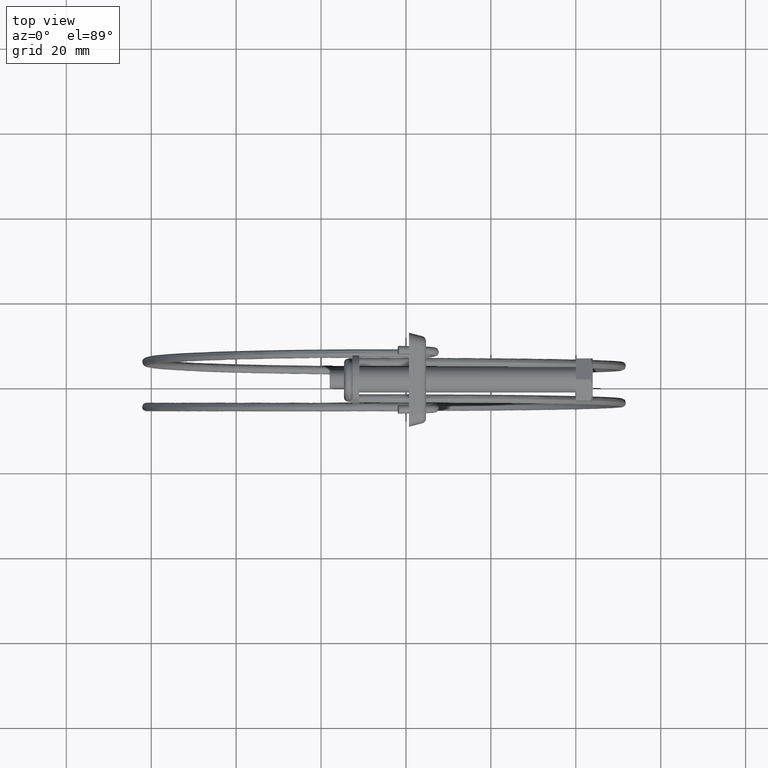
[diagram: clean part render]
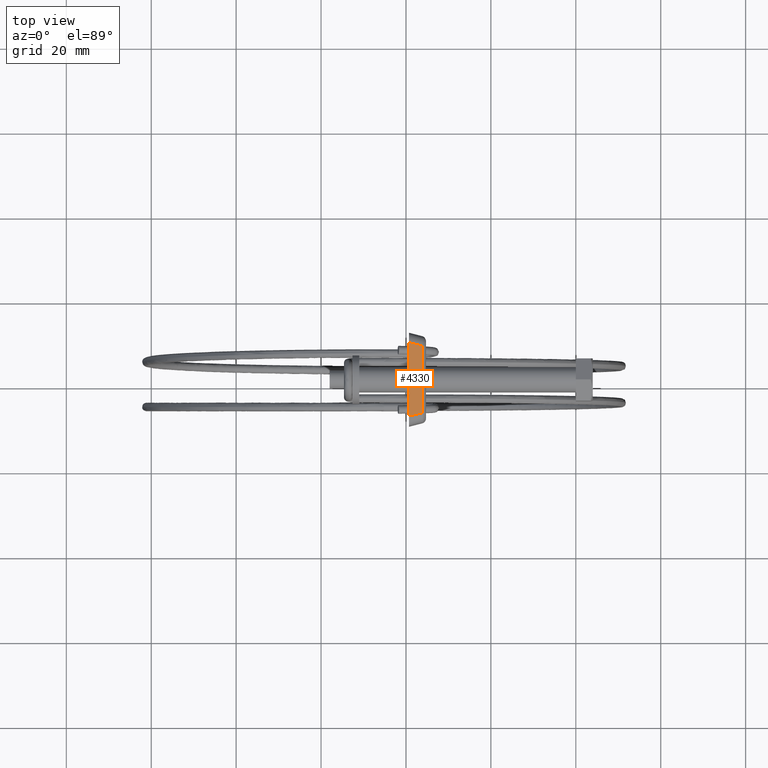
[diagram: same view with one face highlighted and labeled with its STEP entity id]
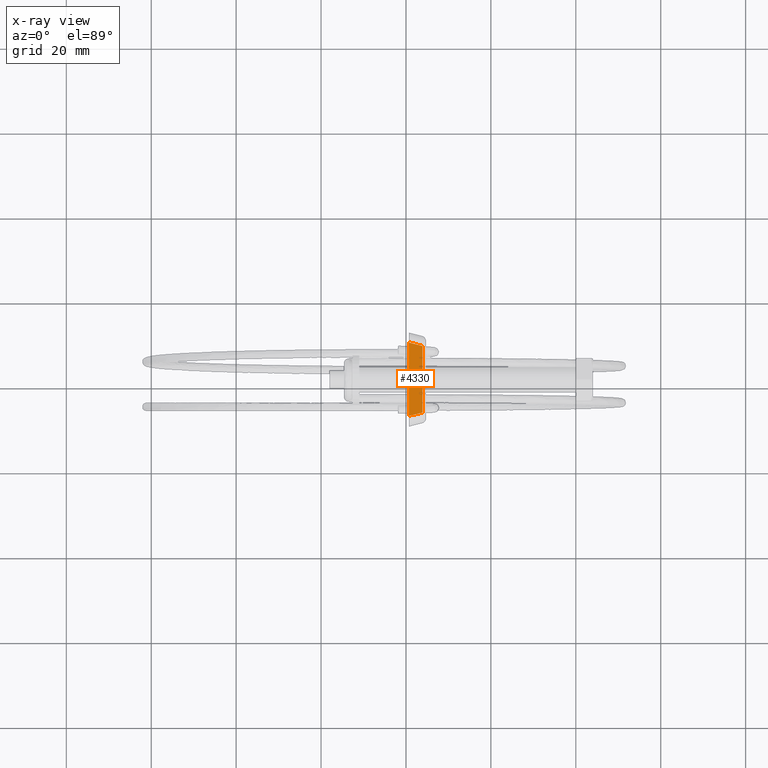
[diagram: x-ray of the same camera — body ghosted, the highlighted face saturated]
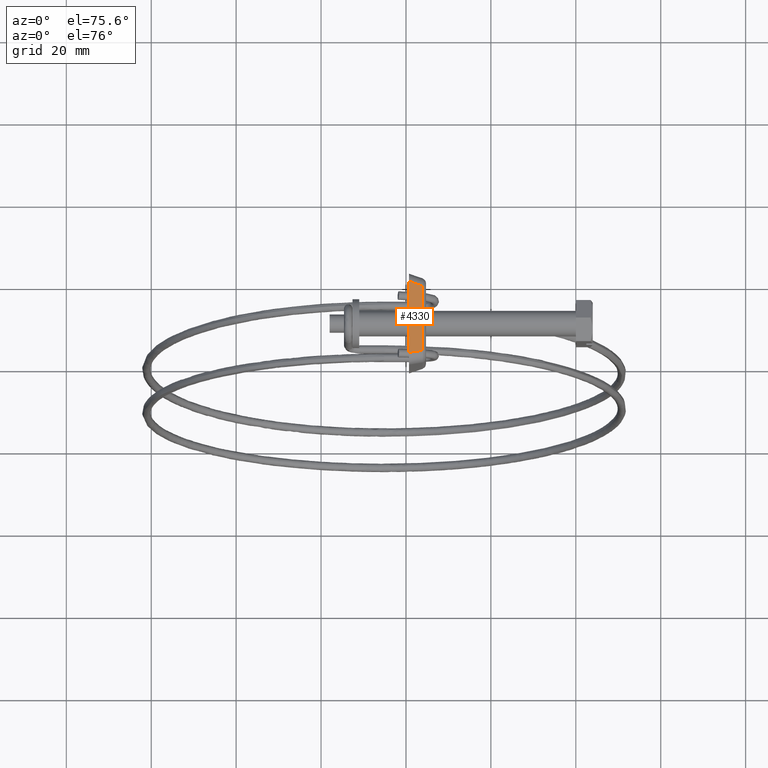
[diagram: same view with one face highlighted and labeled with its STEP entity id]
A machine part, top view. The second image highlights one B-rep face of the part: STEP entity #4330.
The next image is the same camera in x-ray: the body ghosted, the highlighted face saturated — about 0% of this face is hidden behind the body in this view.
A second angle (auxiliary view) of the same face is appended — the face is thin or edge-on in the first view.
In plain terms, the highlighted face is a freeform B-spline surface patch.
Its self-contained STEP definition (entity closure, byte-faithful):
#3442=CARTESIAN_POINT('',(-35.478652022991000,7.837173833659399,5.291994008621761));
#3443=VERTEX_POINT('',#3442);
#3588=CARTESIAN_POINT('',(-35.478652022990950,-7.837173833659441,5.291994008621720));
#3589=VERTEX_POINT('',#3588);
#3611=CARTESIAN_POINT('',(-35.478652022990950,-7.837173833659441,5.291994008621720));
#3612=CARTESIAN_POINT('',(-35.478652022991000,7.837173833659399,5.291994008621761));
#3613=QUASI_UNIFORM_CURVE('',1,(#3611,#3612),.UNSPECIFIED.,.F.,.U.);
#3614=EDGE_CURVE('',#3589,#3443,#3613,.T.);
#3955=CARTESIAN_POINT('',(-38.700000000000003,-8.642511158470031,6.500000000000110));
#3956=VERTEX_POINT('',#3955);
#3957=CARTESIAN_POINT('',(-38.700000000000003,-8.642511158470031,6.500000000000110));
#3958=CARTESIAN_POINT('',(-35.478652022990950,-7.837173833659441,5.291994008621720));
#3959=QUASI_UNIFORM_CURVE('',1,(#3957,#3958),.UNSPECIFIED.,.F.,.U.);
#3960=EDGE_CURVE('',#3956,#3589,#3959,.T.);
#4082=CARTESIAN_POINT('',(-38.700000000000003,8.642511158470031,6.500000000000110));
#4083=VERTEX_POINT('',#4082);
#4084=CARTESIAN_POINT('',(-35.478652022991000,7.837173833659399,5.291994008621761));
#4085=CARTESIAN_POINT('',(-38.700000000000003,8.642511158470031,6.500000000000110));
#4086=QUASI_UNIFORM_CURVE('',1,(#4084,#4085),.UNSPECIFIED.,.F.,.U.);
#4087=EDGE_CURVE('',#3443,#4083,#4086,.T.);
#4244=CARTESIAN_POINT('',(-38.700000000000003,-8.642511158470031,6.500000000000110));
#4245=CARTESIAN_POINT('',(-38.700000000000003,8.642511158470031,6.500000000000110));
#4246=QUASI_UNIFORM_CURVE('',1,(#4244,#4245),.UNSPECIFIED.,.F.,.U.);
#4247=EDGE_CURVE('',#3956,#4083,#4246,.T.);
#4319=CARTESIAN_POINT('',(-38.860907350114417,-9.505898314218301,6.560339231317746));
#4320=CARTESIAN_POINT('',(-35.317746528101807,-9.505898314218301,5.231654473013151));
#4321=CARTESIAN_POINT('',(-38.860907350114417,9.505898468758446,6.560339231317746));
#4322=CARTESIAN_POINT('',(-35.317746528101807,9.505898468758446,5.231654473013151));
#4323=B_SPLINE_SURFACE_WITH_KNOTS('',1,1,((#4319,#4321),(#4320,#4322)),.UNSPECIFIED.,.F.,.F.,.U.,(2,2),(2,2),(0.0,3.784097223591911),(0.0,19.011796782976749),.UNSPECIFIED.);
#4324=ORIENTED_EDGE('',*,*,#3960,.T.);
#4325=ORIENTED_EDGE('',*,*,#3614,.T.);
#4326=ORIENTED_EDGE('',*,*,#4087,.T.);
#4327=ORIENTED_EDGE('',*,*,#4247,.F.);
#4328=EDGE_LOOP('',(#4324,#4325,#4326,#4327));
#4329=FACE_OUTER_BOUND('',#4328,.T.);
#4330=ADVANCED_FACE('',(#4329),#4323,.T.);